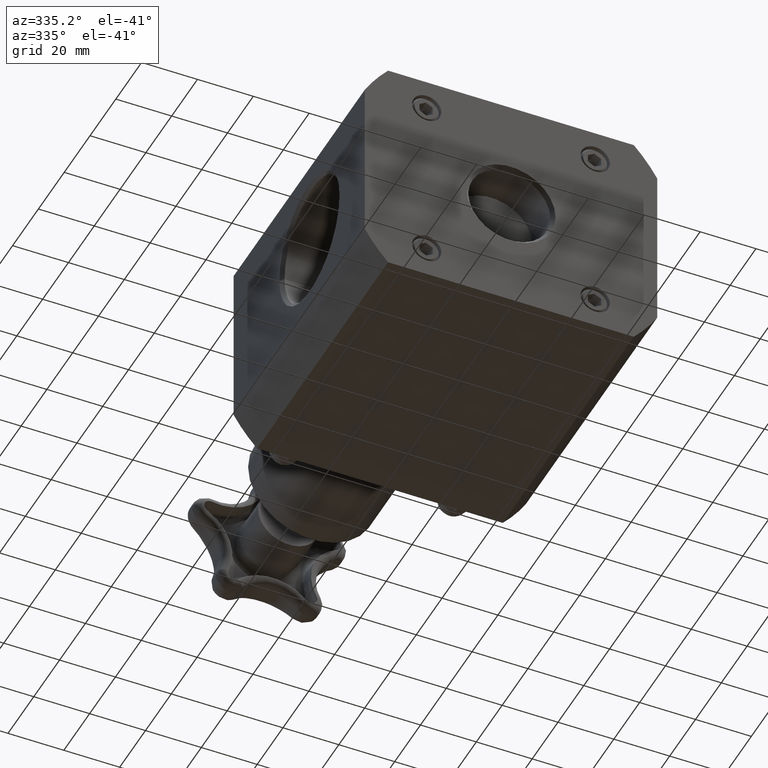
[diagram: clean part render]
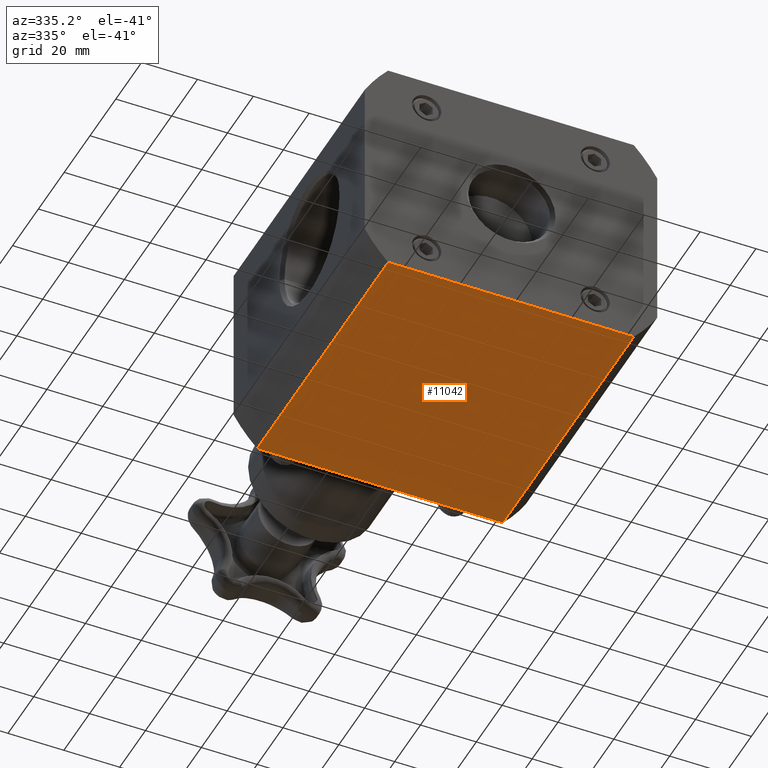
[diagram: same view with one face highlighted and labeled with its STEP entity id]
A machine part, auxiliary view. The second image highlights one B-rep face of the part: STEP entity #11042.
In plain terms, the highlighted planar face has unit normal (0, 0, -1).
Its self-contained STEP definition (entity closure, byte-faithful):
#10550=CARTESIAN_POINT('',(-1.732050807568878,-3.993742E-016,-1.625000000000000));
#10551=VERTEX_POINT('',#10550);
#10559=CARTESIAN_POINT('',(1.732050807568876,1.331292E-015,-1.625000000000001));
#10560=VERTEX_POINT('',#10559);
#10561=CARTESIAN_POINT('',(1.732050807568877,1.331292E-015,-1.625000000000001));
#10562=DIRECTION('',(-1.0,0.0,0.0));
#10563=VECTOR('',#10562,3.464101615137755);
#10564=LINE('',#10561,#10563);
#10565=EDGE_CURVE('',#10560,#10551,#10564,.T.);
#10999=CARTESIAN_POINT('',(-1.732050807568880,4.000000000000000,-1.625000000000000));
#11000=VERTEX_POINT('',#10999);
#11001=CARTESIAN_POINT('',(-1.732050807568878,-3.993742E-016,-1.625000000000000));
#11002=DIRECTION('',(0.0,1.0,0.0));
#11003=VECTOR('',#11002,4.0);
#11004=LINE('',#11001,#11003);
#11005=EDGE_CURVE('',#10551,#11000,#11004,.T.);
#11019=CARTESIAN_POINT('',(-1.732050807568878,-3.993742E-016,-1.625000000000000));
#11020=DIRECTION('',(0.0,0.0,-1.0));
#11021=DIRECTION('',(-1.0,0.0,0.0));
#11022=AXIS2_PLACEMENT_3D('',#11019,#11020,#11021);
#11023=PLANE('',#11022);
#11024=CARTESIAN_POINT('',(1.732050807568875,4.000000000000002,-1.625000000000001));
#11025=VERTEX_POINT('',#11024);
#11026=CARTESIAN_POINT('',(1.732050807568876,1.331292E-015,-1.625000000000001));
#11027=DIRECTION('',(0.0,1.0,0.0));
#11028=VECTOR('',#11027,4.000000000000001);
#11029=LINE('',#11026,#11028);
#11030=EDGE_CURVE('',#10560,#11025,#11029,.T.);
#11031=ORIENTED_EDGE('',*,*,#11030,.F.);
#11032=ORIENTED_EDGE('',*,*,#10565,.T.);
#11033=ORIENTED_EDGE('',*,*,#11005,.T.);
#11034=CARTESIAN_POINT('',(-1.732050807568880,4.0,-1.625000000000000));
#11035=DIRECTION('',(1.0,0.0,0.0));
#11036=VECTOR('',#11035,3.464101615137755);
#11037=LINE('',#11034,#11036);
#11038=EDGE_CURVE('',#11000,#11025,#11037,.T.);
#11039=ORIENTED_EDGE('',*,*,#11038,.T.);
#11040=EDGE_LOOP('',(#11031,#11032,#11033,#11039));
#11041=FACE_OUTER_BOUND('',#11040,.T.);
#11042=ADVANCED_FACE('',(#11041),#11023,.T.);